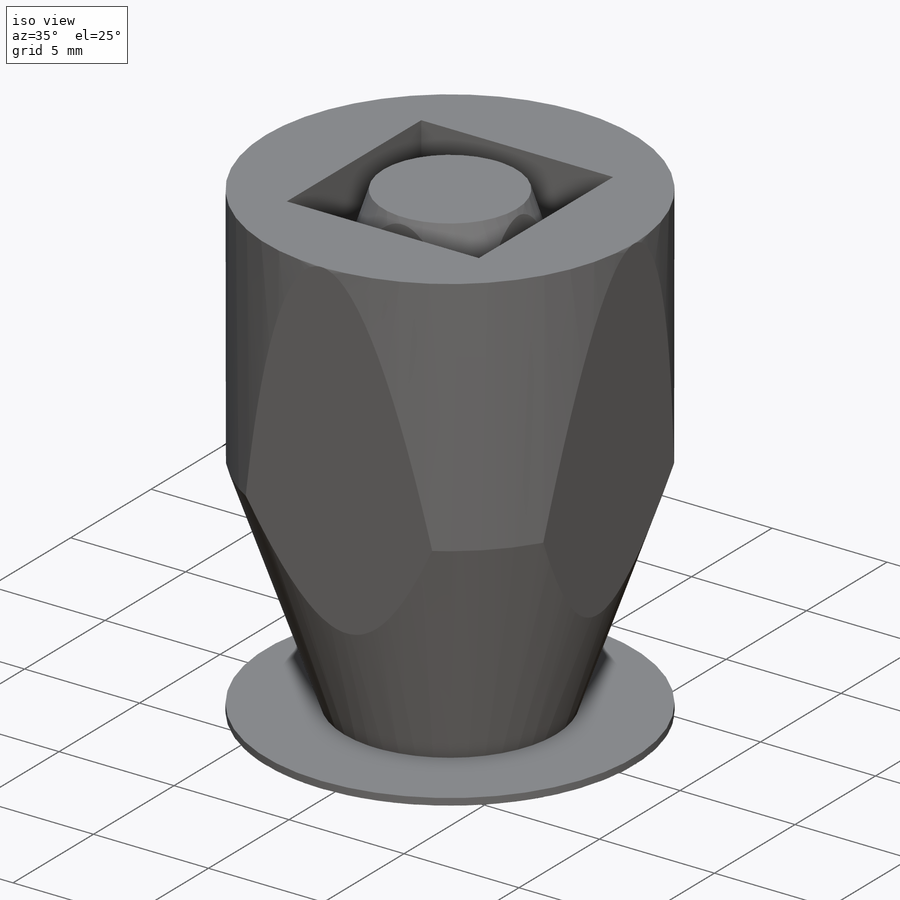
[diagram: iso view]
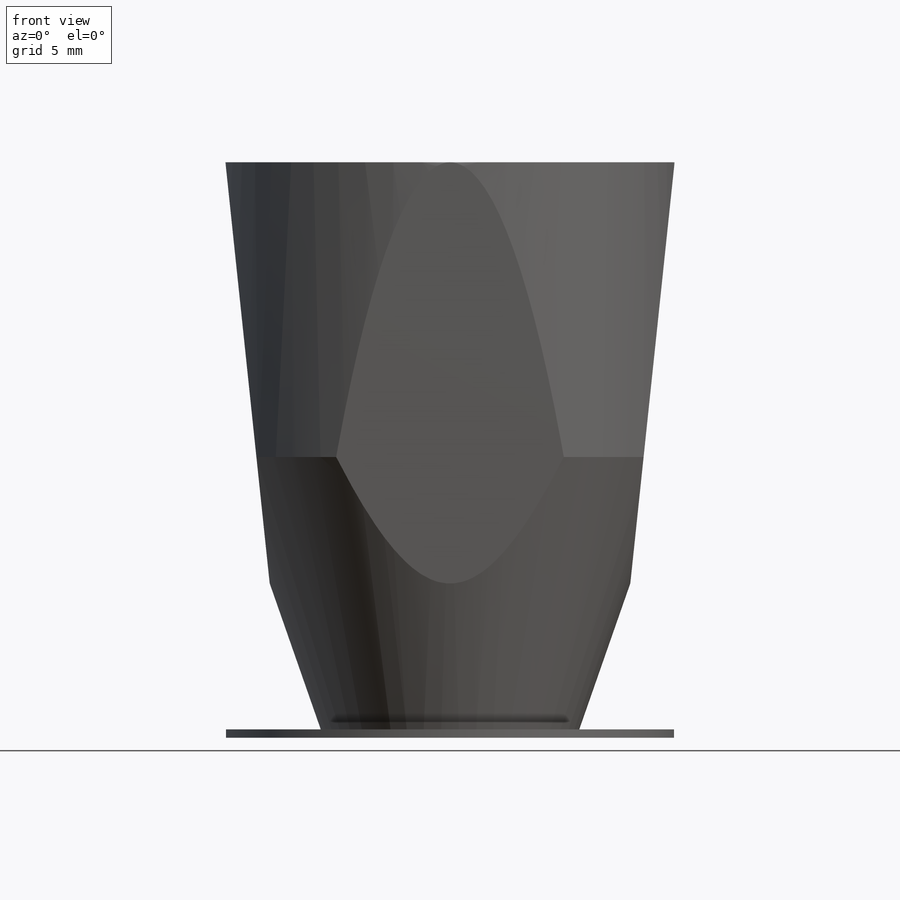
[diagram: front view]
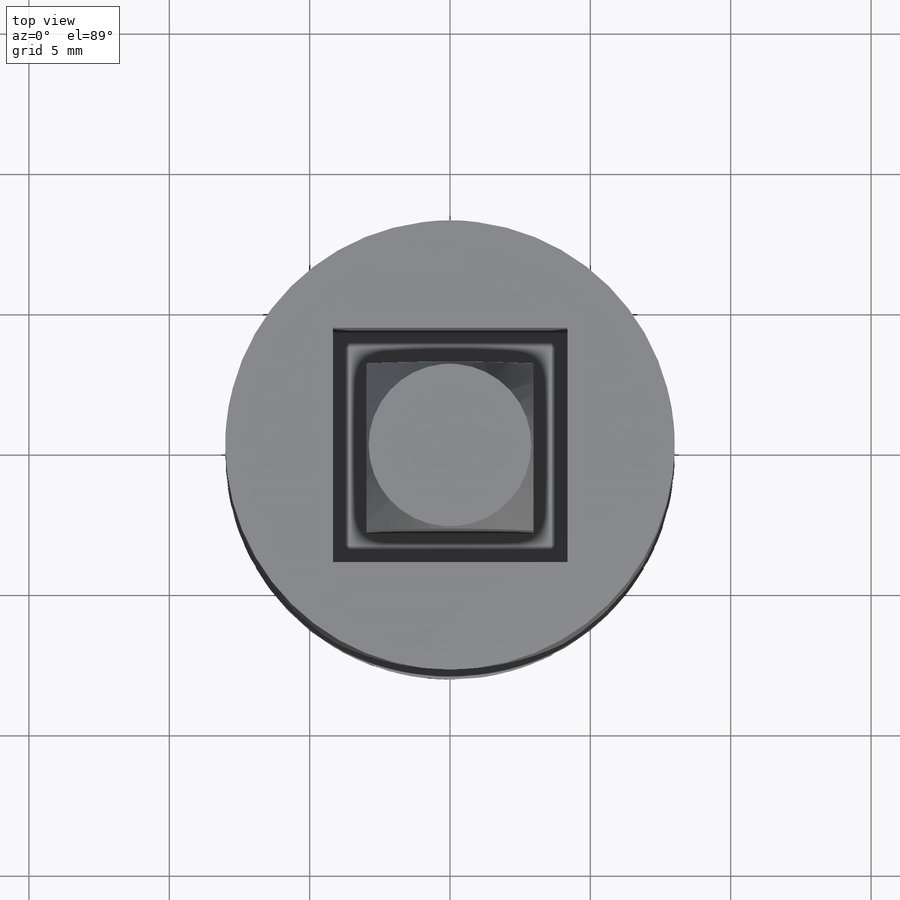
[diagram: top view]
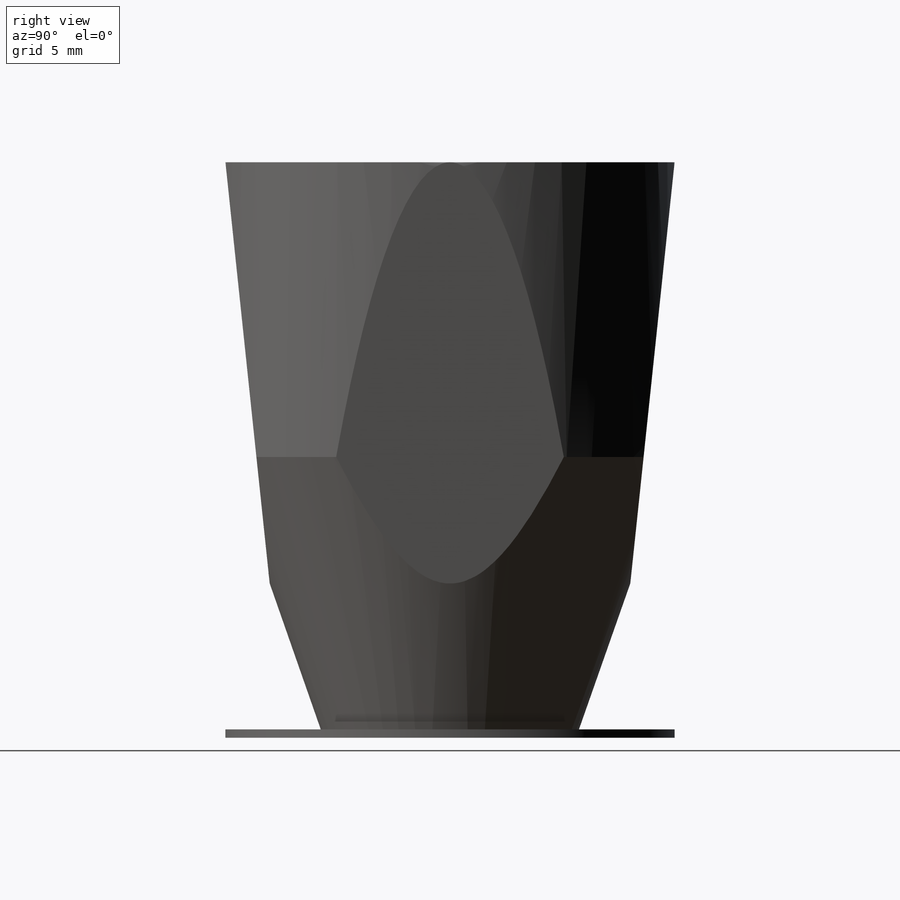
[diagram: right view]
SOLIDWORKS PART (.sldprt)
format: sldprt  version: not decoded by parser v0  size: 282,624 bytes
history: native  units: mm
features: sketch x6, cut_extrude x2, extrude x2, material x1, revolve x1, cut_revolve x1 (+13 scaffold rows collapsed)
feature tree (26):
  scaffold x13  (default folders/planes/origin — collapsed)
  material  "ABS"
  sketch  "Sketch1"  dims[c1.D1=20.0mm c1.D2=10.0mm c1.D3=8.0mm c2.D1=10.5mm c2.D4=~9.252535mm c2.D2=10.0mm c3.D4=3.7mm c3.D5=4.5mm]
  revolve  "Revolve1"  Angle=360deg
  sketch  "Sketch2"  dims[D1=8.35mm]
  cut_extrude  "Cut-Extrude1"  Depth=10mm
  sketch  "Sketch3"  dims[D1=5.95mm]
  extrude  "Boss-Extrude1"  Depth=10mm
  sketch  "Sketch4"  dims[D1=7.325mm D2=1.0mm D3=20.0mm D4=6.0mm]
  cut_revolve  "Cut-Revolve1"  Angle=360deg
  sketch  "Sketch6"  dims[D1=2.0mm]
  cut_extrude  "Cut-Extrude2"  Depth=15mm
  sketch  "Sketch5"  dims[D1=16.0mm]
  extrude  "Boss-Extrude2"  Depth=0.3mm
decode coverage: 12 of 12 modeling features carry decoded parameters
note: ~ marks probable driven/reference dimensions
note: suppression state not decoded; provenance and decode notes live in map.json
